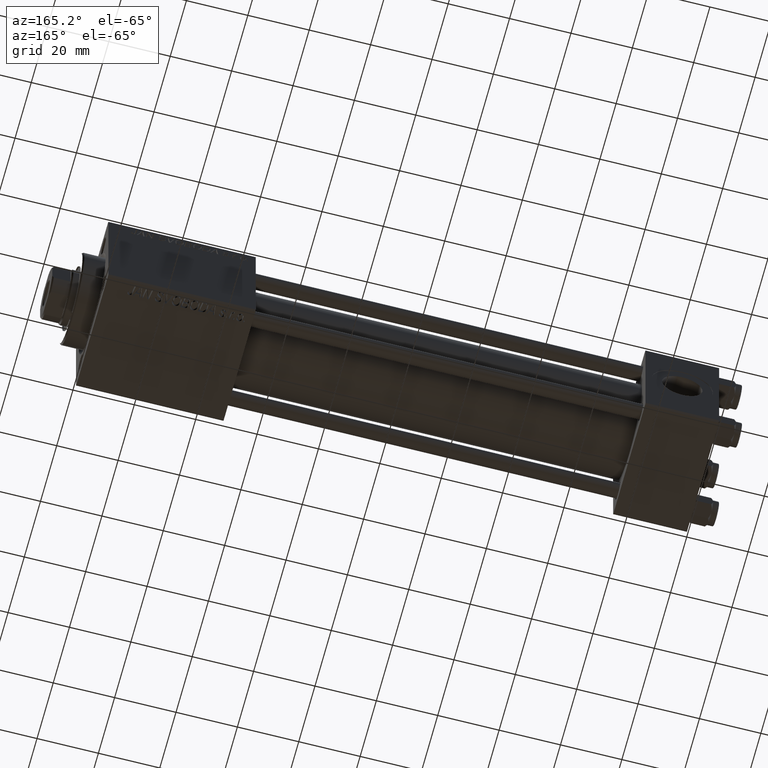
[diagram: clean part render]
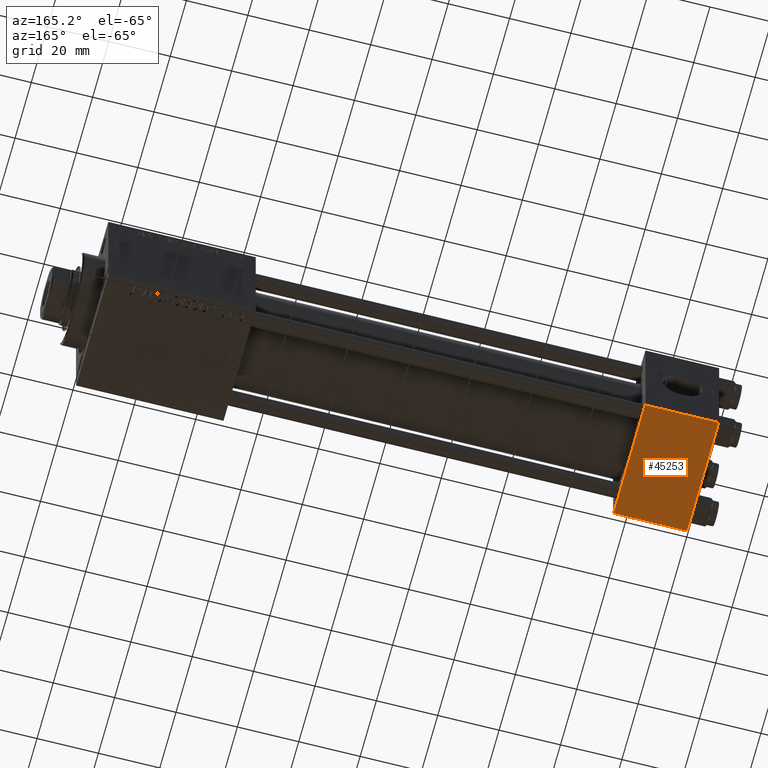
[diagram: same view with one face highlighted and labeled with its STEP entity id]
A machine part, auxiliary view. The second image highlights one B-rep face of the part: STEP entity #45253.
In plain terms, the highlighted planar face has unit normal (0, -0, -1).
Its self-contained STEP definition (entity closure, byte-faithful):
#2758 = VERTEX_POINT ( 'NONE', #19915 ) ;
#3621 = EDGE_CURVE ( 'NONE', #43242, #25590, #8624, .T. ) ;
#7894 = VECTOR ( 'NONE', #33026, 1000.000000000000000 ) ;
#8624 = LINE ( 'NONE', #13068, #7894 ) ;
#9251 = CARTESIAN_POINT ( 'NONE',  ( 0.000000000000000000, 19.50000000000000711, -20.00000000000000711 ) ) ;
#9407 = CARTESIAN_POINT ( 'NONE',  ( 24.00000000000000000, 19.50000000000000711, -20.00000000000000711 ) ) ;
#10919 = CARTESIAN_POINT ( 'NONE',  ( 24.00000000000000000, 20.00000000000000000, -20.00000000000000711 ) ) ;
#13068 = CARTESIAN_POINT ( 'NONE',  ( 24.00000000000000000, 20.00000000000000000, -20.00000000000000711 ) ) ;
#14671 = ORIENTED_EDGE ( 'NONE', *, *, #26799, .T. ) ;
#14869 = DIRECTION ( 'NONE',  ( 1.000000000000000000, 0.000000000000000000, 0.000000000000000000 ) ) ;
#19915 = CARTESIAN_POINT ( 'NONE',  ( 0.000000000000000000, -19.50000000000000711, -20.00000000000000000 ) ) ;
#21337 = AXIS2_PLACEMENT_3D ( 'NONE', #10919, #50566, #23759 ) ;
#22233 = VECTOR ( 'NONE', #35356, 1000.000000000000000 ) ;
#22744 = LINE ( 'NONE', #31400, #29294 ) ;
#23143 = VECTOR ( 'NONE', #50553, 1000.000000000000000 ) ;
#23759 = DIRECTION ( 'NONE',  ( 0.000000000000000000, 1.000000000000000000, -1.734723475976806848E-16 ) ) ;
#25590 = VERTEX_POINT ( 'NONE', #29314 ) ;
#26323 = VERTEX_POINT ( 'NONE', #9251 ) ;
#26799 = EDGE_CURVE ( 'NONE', #26323, #43242, #22744, .T. ) ;
#29191 = ORIENTED_EDGE ( 'NONE', *, *, #47945, .T. ) ;
#29294 = VECTOR ( 'NONE', #14869, 1000.000000000000000 ) ;
#29314 = CARTESIAN_POINT ( 'NONE',  ( 24.00000000000000000, -19.50000000000000711, -20.00000000000000000 ) ) ;
#31400 = CARTESIAN_POINT ( 'NONE',  ( 24.00000000000000000, 19.50000000000000711, -20.00000000000000711 ) ) ;
#32878 = EDGE_LOOP ( 'NONE', ( #39758, #14671, #45602, #29191 ) ) ;
#33026 = DIRECTION ( 'NONE',  ( 0.000000000000000000, -1.000000000000000000, 1.734723475976807094E-16 ) ) ;
#34523 = PLANE ( 'NONE',  #21337 ) ;
#34575 = LINE ( 'NONE', #50361, #22233 ) ;
#35042 = CARTESIAN_POINT ( 'NONE',  ( 0.000000000000000000, -19.50000000000000711, -20.00000000000000000 ) ) ;
#35356 = DIRECTION ( 'NONE',  ( 0.000000000000000000, -1.000000000000000000, 1.734723475976807094E-16 ) ) ;
#38976 = LINE ( 'NONE', #35042, #23143 ) ;
#39758 = ORIENTED_EDGE ( 'NONE', *, *, #47703, .F. ) ;
#43205 = FACE_OUTER_BOUND ( 'NONE', #32878, .T. ) ;
#43242 = VERTEX_POINT ( 'NONE', #9407 ) ;
#45253 = ADVANCED_FACE ( 'NONE', ( #43205 ), #34523, .T. ) ;
#45602 = ORIENTED_EDGE ( 'NONE', *, *, #3621, .T. ) ;
#47703 = EDGE_CURVE ( 'NONE', #26323, #2758, #34575, .T. ) ;
#47945 = EDGE_CURVE ( 'NONE', #25590, #2758, #38976, .T. ) ;
#50361 = CARTESIAN_POINT ( 'NONE',  ( 0.000000000000000000, 20.00000000000000000, -20.00000000000000711 ) ) ;
#50553 = DIRECTION ( 'NONE',  ( -1.000000000000000000, 0.000000000000000000, 0.000000000000000000 ) ) ;
#50566 = DIRECTION ( 'NONE',  ( 0.000000000000000000, -1.734723475976806848E-16, -1.000000000000000000 ) ) ;